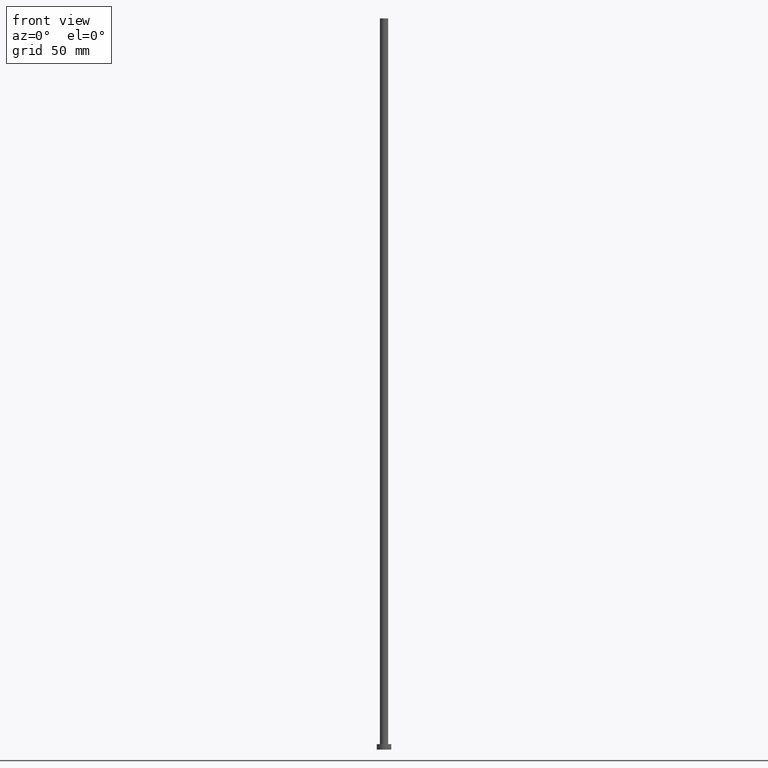
[diagram: clean part render]
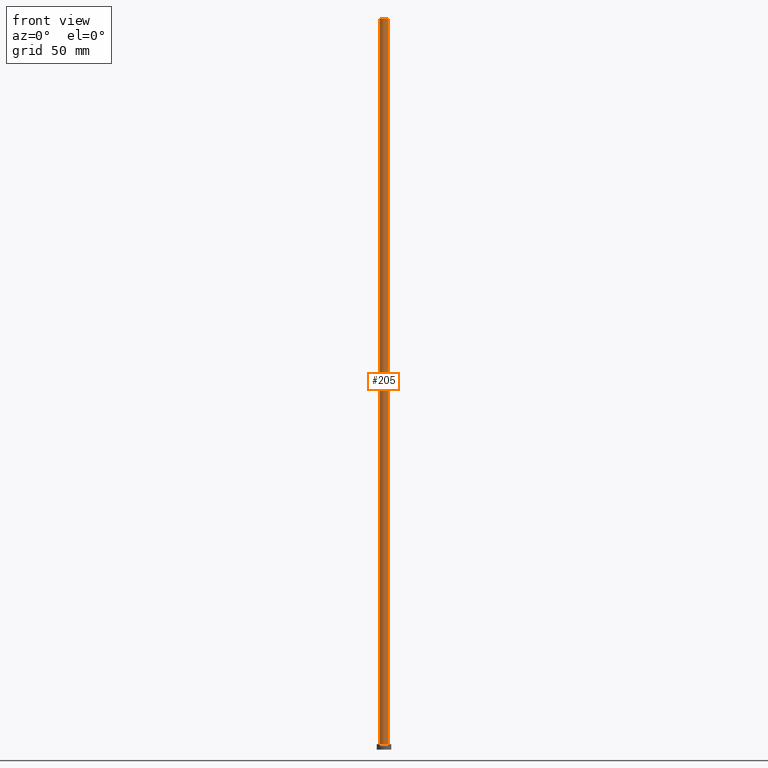
[diagram: same view with one face highlighted and labeled with its STEP entity id]
A machine part, front view. The second image highlights one B-rep face of the part: STEP entity #205.
In plain terms, the highlighted cylindrical surface (edge-blend (fillet) strip) has radius 2.25 mm, axis along (-0, -0, -1).
Its self-contained STEP definition (entity closure, byte-faithful):
#3 = DIRECTION ( 'NONE',  ( -1.000000000000000000, 0.000000000000000000, 0.000000000000000000 ) ) ;
#9 = ORIENTED_EDGE ( 'NONE', *, *, #11, .F. ) ;
#10 = DIRECTION ( 'NONE',  ( 1.000000000000000000, 0.000000000000000000, 0.000000000000000000 ) ) ;
#11 = EDGE_CURVE ( 'NONE', #42, #186, #147, .T. ) ;
#14 = AXIS2_PLACEMENT_3D ( 'NONE', #125, #153, #10 ) ;
#18 = EDGE_CURVE ( 'NONE', #42, #57, #49, .T. ) ;
#22 = VECTOR ( 'NONE', #251, 1000.000000000000000 ) ;
#27 = CARTESIAN_POINT ( 'NONE',  ( -2.250000000000000000, 0.000000000000000000, 400.0000000000000000 ) ) ;
#29 = LINE ( 'NONE', #170, #22 ) ;
#39 = VERTEX_POINT ( 'NONE', #227 ) ;
#42 = VERTEX_POINT ( 'NONE', #252 ) ;
#49 = LINE ( 'NONE', #27, #255 ) ;
#55 = AXIS2_PLACEMENT_3D ( 'NONE', #228, #226, #76 ) ;
#57 = VERTEX_POINT ( 'NONE', #61 ) ;
#61 = CARTESIAN_POINT ( 'NONE',  ( -2.250000000000000000, 0.000000000000000000, 3.000000000000000000 ) ) ;
#74 = DIRECTION ( 'NONE',  ( -0.000000000000000000, -0.000000000000000000, -1.000000000000000000 ) ) ;
#76 = DIRECTION ( 'NONE',  ( 1.000000000000000000, 0.000000000000000000, 0.000000000000000000 ) ) ;
#89 = FACE_OUTER_BOUND ( 'NONE', #220, .T. ) ;
#106 = CARTESIAN_POINT ( 'NONE',  ( 2.250000000000000000, 2.755455298081544285E-16, 400.0000000000000000 ) ) ;
#110 = CARTESIAN_POINT ( 'NONE',  ( 0.000000000000000000, 0.000000000000000000, 400.0000000000000000 ) ) ;
#120 = CIRCLE ( 'NONE', #14, 2.250000000000000000 ) ;
#125 = CARTESIAN_POINT ( 'NONE',  ( 0.000000000000000000, 0.000000000000000000, 3.000000000000000000 ) ) ;
#147 = CIRCLE ( 'NONE', #55, 2.250000000000000000 ) ;
#148 = EDGE_CURVE ( 'NONE', #57, #39, #120, .T. ) ;
#153 = DIRECTION ( 'NONE',  ( 0.000000000000000000, 0.000000000000000000, 1.000000000000000000 ) ) ;
#157 = EDGE_CURVE ( 'NONE', #186, #39, #29, .T. ) ;
#170 = CARTESIAN_POINT ( 'NONE',  ( 2.250000000000000000, 2.755455298081544285E-16, 400.0000000000000000 ) ) ;
#182 = AXIS2_PLACEMENT_3D ( 'NONE', #110, #197, #3 ) ;
#186 = VERTEX_POINT ( 'NONE', #106 ) ;
#197 = DIRECTION ( 'NONE',  ( -0.000000000000000000, -0.000000000000000000, -1.000000000000000000 ) ) ;
#205 = ADVANCED_FACE ( 'NONE', ( #89 ), #239, .T. ) ;
#207 = ORIENTED_EDGE ( 'NONE', *, *, #18, .T. ) ;
#220 = EDGE_LOOP ( 'NONE', ( #246, #9, #207, #223 ) ) ;
#223 = ORIENTED_EDGE ( 'NONE', *, *, #148, .T. ) ;
#226 = DIRECTION ( 'NONE',  ( 0.000000000000000000, 0.000000000000000000, 1.000000000000000000 ) ) ;
#227 = CARTESIAN_POINT ( 'NONE',  ( 2.250000000000000000, 2.755455298081544285E-16, 3.000000000000000000 ) ) ;
#228 = CARTESIAN_POINT ( 'NONE',  ( 0.000000000000000000, 0.000000000000000000, 400.0000000000000000 ) ) ;
#239 = CYLINDRICAL_SURFACE ( 'NONE', #182, 2.250000000000000000 ) ;
#246 = ORIENTED_EDGE ( 'NONE', *, *, #157, .F. ) ;
#251 = DIRECTION ( 'NONE',  ( -0.000000000000000000, -0.000000000000000000, -1.000000000000000000 ) ) ;
#252 = CARTESIAN_POINT ( 'NONE',  ( -2.250000000000000000, 0.000000000000000000, 400.0000000000000000 ) ) ;
#255 = VECTOR ( 'NONE', #74, 1000.000000000000000 ) ;